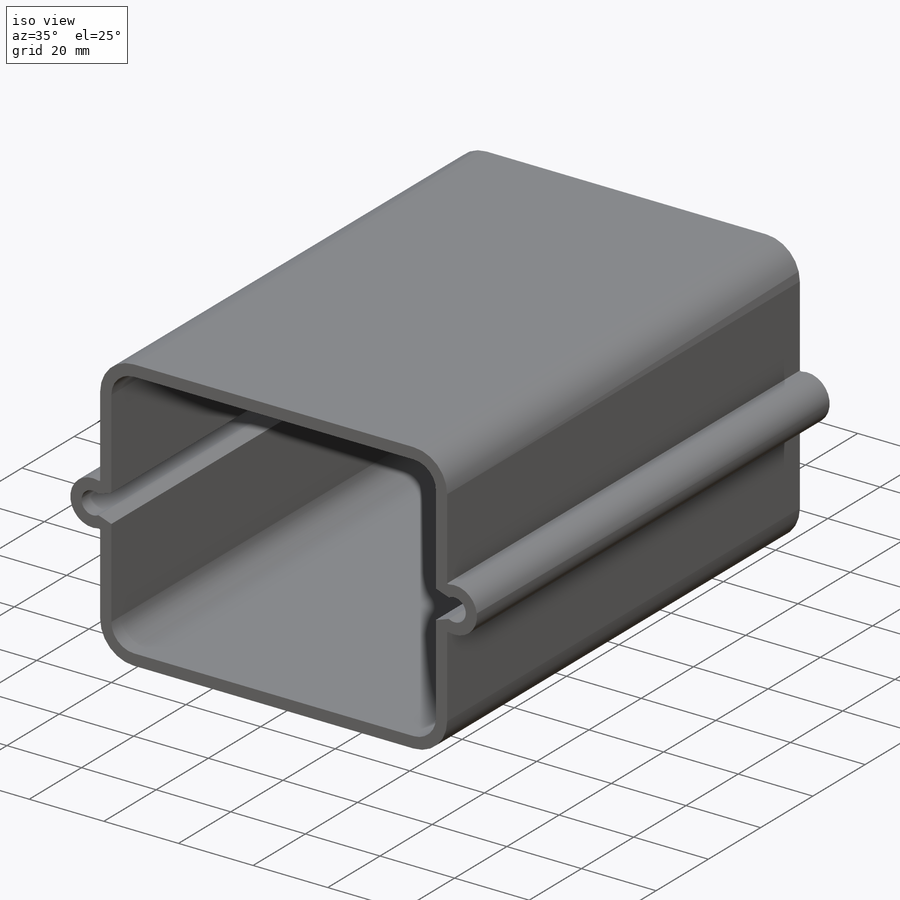
[diagram: iso view]
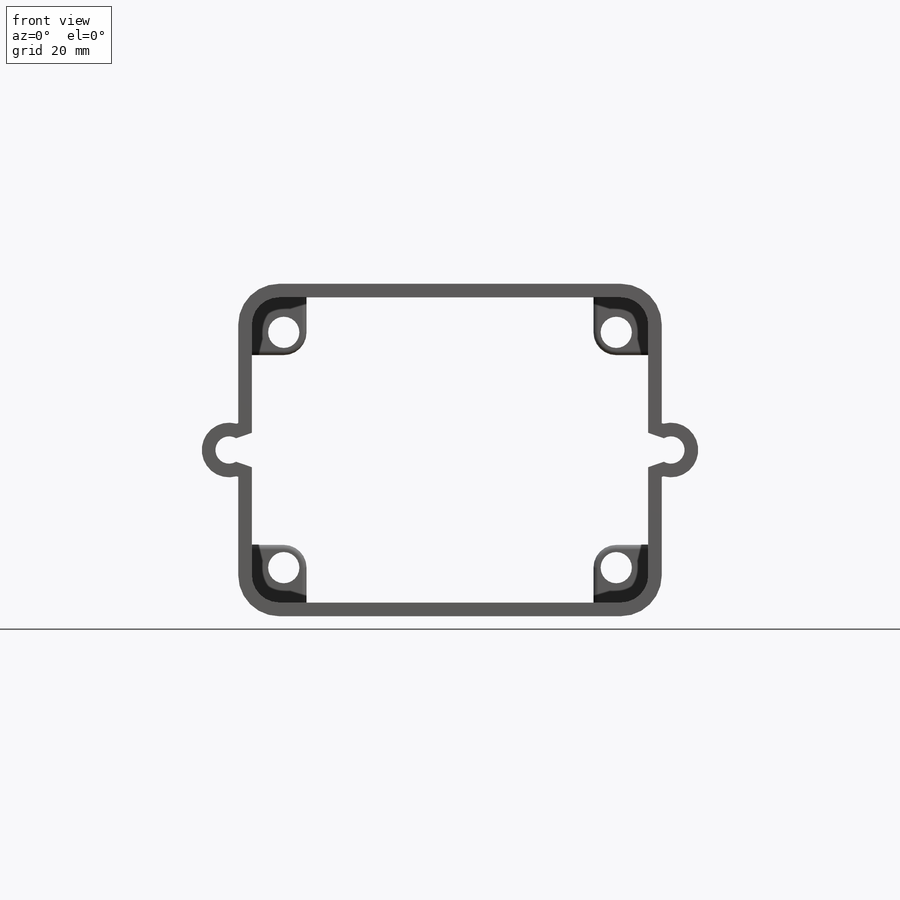
[diagram: front view]
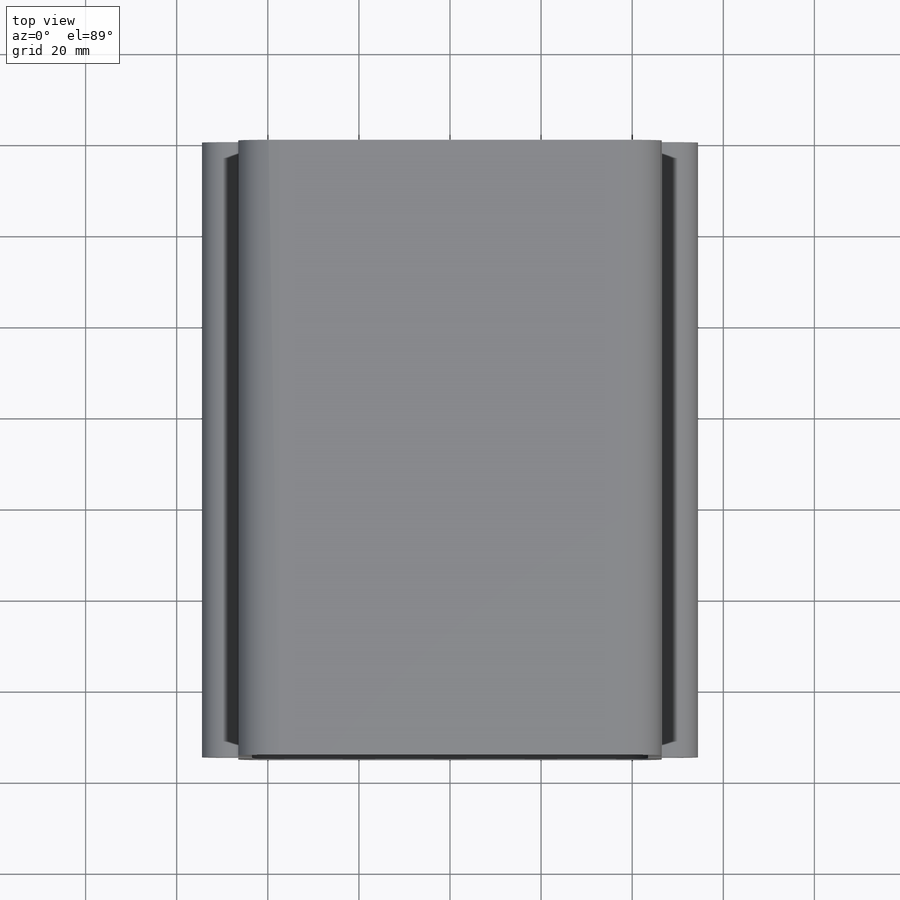
[diagram: top view]
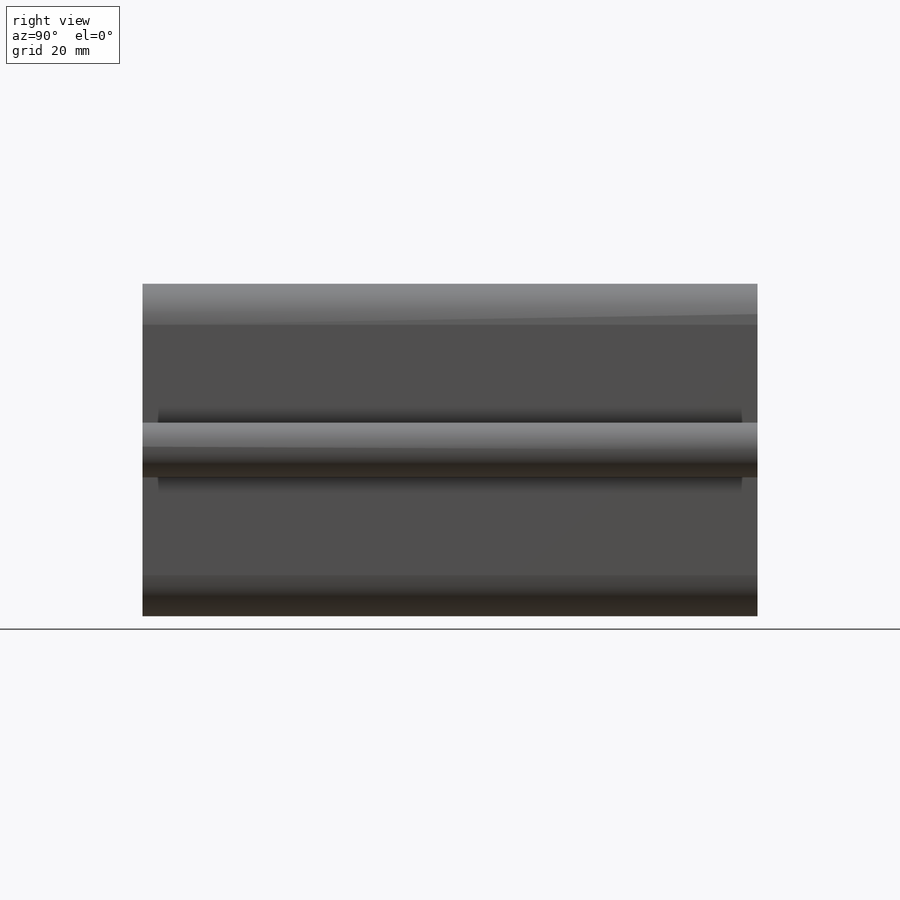
[diagram: right view]
SOLIDWORKS PART (.sldprt)
format: sldprt  version: not decoded by parser v0  size: 530,432 bytes
history: native  units: mm
features: sketch x7, material x1, extrude x1, fillet x1 + 1 further entry (+18 scaffold rows collapsed; 3 parser-record rows omitted)
feature tree (32):
  scaffold x18  (default folders/planes/origin — collapsed)
  material  "Material <not specified>"
  sketch  "Sketch1-Slide_Rail_Reference"  dims[D1=5.0mm 2=2.0mm D2=16.5mm D3=5.25mm D4=85.0mm D5=65.0mm D6=6.0mm]
  sketch  "Sketch2-Slide_Rail_Reference"  dims[D1=1.0mm]
  sketch  "Sketch3-Slide_Rail_Reference"  dims[D1=0.0mm D2=0.0mm]
  sketch  "Sketch4-Slide_Rail_Reference"  dims[c1.D2=3.556mm c1.D1=0.0mm c2.D2=0.0mm c2.D3=0.0mm]
  "Slide_Rail_Reference"
  parser-record x3  (decoder bookkeeping rows leaked as tree rows — omitted from the tree; the rows remain in map.json)
  sketch  "Sketch4"  dims[c1.D1=0.0mm c2.D1=135.0mm c2.D5=3.0mm c2.D6=1.0mm c2.D7=5.0mm]
  sketch  "Sketch5"
  sketch  "Sketch6"  dims[D3=6.858mm D1=0.0mm D2=0.0mm]
  extrude  "Boss-Extrude1"  Depth=6mm
  fillet  "Fillet1"  Radius=1mm
decode coverage: 8 of 9 modeling features carry decoded parameters; 1 rows unclassified (native names shown)
note: suppression state not decoded; provenance and decode notes live in map.json
